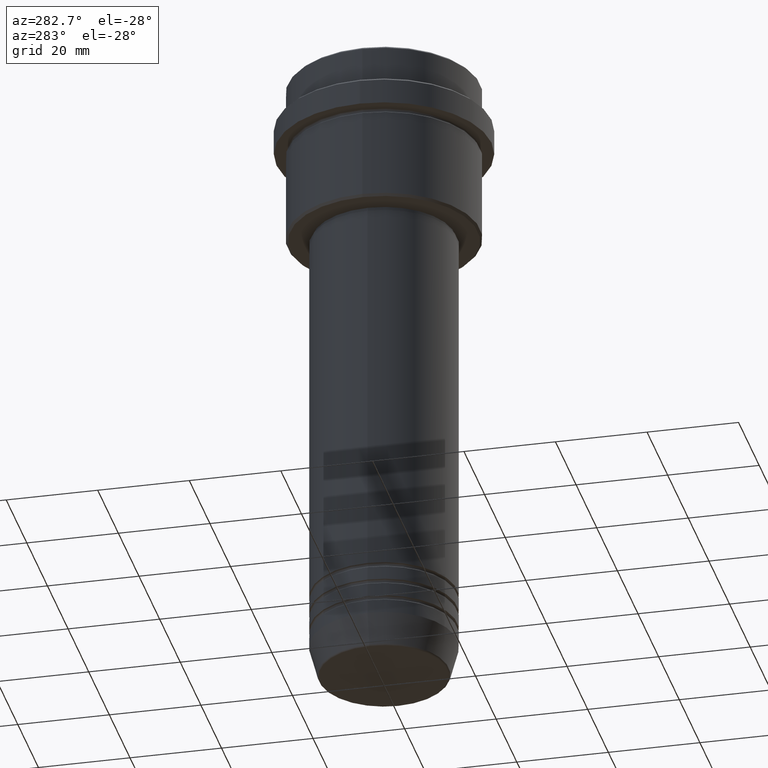
[diagram: clean part render]
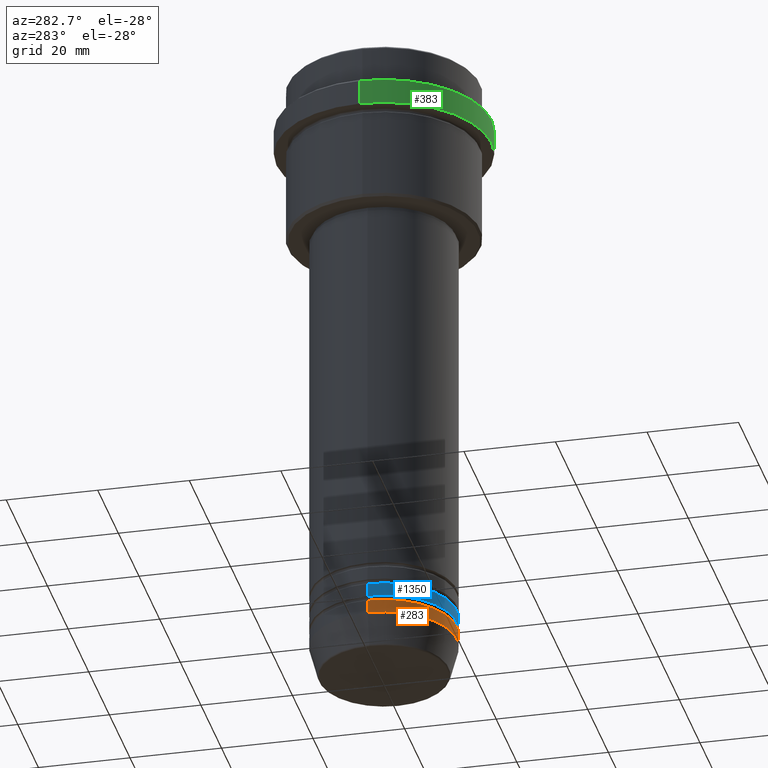
[diagram: same view with three faces highlighted in distinct colors, each labeled with its STEP entity id]
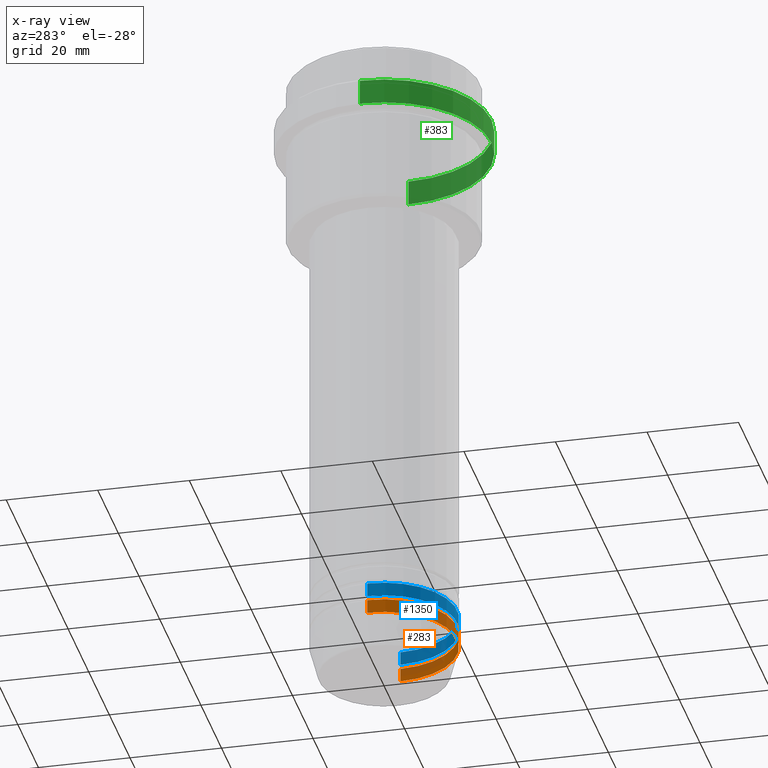
[diagram: x-ray of the same camera — body ghosted, the three highlighted faces saturated]
A machine part, auxiliary view with three faces highlighted in distinct colors.
The next image is the same camera in x-ray (body ghosted, the three faces saturated) — at least one of them is partly hidden behind the body in this view.
Their STEP definitions:

[orange] entity #283 — the highlighted cylindrical surface (partial cylindrical patch) has radius 16 mm, axis along (-0, -0, 1).
#3 = DIRECTION ( 'NONE',  ( -0.000000000000000000, -0.000000000000000000, 1.000000000000000000 ) ) ;
#29 = CARTESIAN_POINT ( 'NONE',  ( 16.00000000000000000, 0.000000000000000000, 0.000000000000000000 ) ) ;
#79 = LINE ( 'NONE', #947, #442 ) ;
#80 = CYLINDRICAL_SURFACE ( 'NONE', #251, 16.00000000000000000 ) ;
#144 = ORIENTED_EDGE ( 'NONE', *, *, #219, .T. ) ;
#150 = AXIS2_PLACEMENT_3D ( 'NONE', #367, #237, #1339 ) ;
#153 = VERTEX_POINT ( 'NONE', #823 ) ;
#219 = EDGE_CURVE ( 'NONE', #153, #1301, #718, .T. ) ;
#237 = DIRECTION ( 'NONE',  ( -0.000000000000000000, -0.000000000000000000, 1.000000000000000000 ) ) ;
#244 = EDGE_LOOP ( 'NONE', ( #806, #1318, #144, #672 ) ) ;
#248 = AXIS2_PLACEMENT_3D ( 'NONE', #430, #1290, #868 ) ;
#251 = AXIS2_PLACEMENT_3D ( 'NONE', #408, #1302, #994 ) ;
#283 = ADVANCED_FACE ( 'NONE', ( #1251 ), #80, .T. ) ;
#293 = EDGE_CURVE ( 'NONE', #859, #1301, #1065, .T. ) ;
#367 = CARTESIAN_POINT ( 'NONE',  ( 0.000000000000000000, 0.000000000000000000, -133.9999999999999716 ) ) ;
#377 = VERTEX_POINT ( 'NONE', #1008 ) ;
#408 = CARTESIAN_POINT ( 'NONE',  ( 0.000000000000000000, 0.000000000000000000, 0.000000000000000000 ) ) ;
#415 = VECTOR ( 'NONE', #577, 1000.000000000000000 ) ;
#430 = CARTESIAN_POINT ( 'NONE',  ( 0.000000000000000000, 0.000000000000000000, -130.9999999999999716 ) ) ;
#436 = EDGE_CURVE ( 'NONE', #377, #859, #79, .T. ) ;
#442 = VECTOR ( 'NONE', #3, 1000.000000000000000 ) ;
#462 = EDGE_CURVE ( 'NONE', #377, #153, #1193, .T. ) ;
#577 = DIRECTION ( 'NONE',  ( -0.000000000000000000, -0.000000000000000000, 1.000000000000000000 ) ) ;
#672 = ORIENTED_EDGE ( 'NONE', *, *, #293, .F. ) ;
#692 = CARTESIAN_POINT ( 'NONE',  ( 16.00000000000000000, 0.000000000000000000, -130.9999999999999716 ) ) ;
#718 = LINE ( 'NONE', #29, #415 ) ;
#806 = ORIENTED_EDGE ( 'NONE', *, *, #436, .F. ) ;
#823 = CARTESIAN_POINT ( 'NONE',  ( 16.00000000000000000, 0.000000000000000000, -133.9999999999999716 ) ) ;
#859 = VERTEX_POINT ( 'NONE', #911 ) ;
#868 = DIRECTION ( 'NONE',  ( 1.000000000000000000, 0.000000000000000000, 0.000000000000000000 ) ) ;
#911 = CARTESIAN_POINT ( 'NONE',  ( -16.00000000000000000, 1.959434878635765131E-15, -130.9999999999999716 ) ) ;
#947 = CARTESIAN_POINT ( 'NONE',  ( -16.00000000000000000, 1.959434878635765131E-15, 0.000000000000000000 ) ) ;
#994 = DIRECTION ( 'NONE',  ( 1.000000000000000000, 0.000000000000000000, 0.000000000000000000 ) ) ;
#1008 = CARTESIAN_POINT ( 'NONE',  ( -16.00000000000000000, 1.959434878635765131E-15, -133.9999999999999716 ) ) ;
#1065 = CIRCLE ( 'NONE', #248, 16.00000000000000000 ) ;
#1193 = CIRCLE ( 'NONE', #150, 16.00000000000000000 ) ;
#1251 = FACE_OUTER_BOUND ( 'NONE', #244, .T. ) ;
#1290 = DIRECTION ( 'NONE',  ( -0.000000000000000000, -0.000000000000000000, 1.000000000000000000 ) ) ;
#1301 = VERTEX_POINT ( 'NONE', #692 ) ;
#1302 = DIRECTION ( 'NONE',  ( -0.000000000000000000, -0.000000000000000000, 1.000000000000000000 ) ) ;
#1318 = ORIENTED_EDGE ( 'NONE', *, *, #462, .T. ) ;
#1339 = DIRECTION ( 'NONE',  ( 1.000000000000000000, 0.000000000000000000, 0.000000000000000000 ) ) ;

[blue] entity #1350 — the highlighted cylindrical surface (partial cylindrical patch) has radius 16 mm, axis along (-0, -0, 1).
#18 = DIRECTION ( 'NONE',  ( -0.000000000000000000, -0.000000000000000000, 1.000000000000000000 ) ) ;
#50 = ORIENTED_EDGE ( 'NONE', *, *, #1245, .F. ) ;
#51 = ORIENTED_EDGE ( 'NONE', *, *, #122, .T. ) ;
#122 = EDGE_CURVE ( 'NONE', #1153, #274, #380, .T. ) ;
#257 = CARTESIAN_POINT ( 'NONE',  ( 0.000000000000000000, 0.000000000000000000, 0.000000000000000000 ) ) ;
#274 = VERTEX_POINT ( 'NONE', #1376 ) ;
#340 = CARTESIAN_POINT ( 'NONE',  ( -16.00000000000000000, 1.959434878635765131E-15, 0.000000000000000000 ) ) ;
#379 = DIRECTION ( 'NONE',  ( 1.000000000000000000, 0.000000000000000000, 0.000000000000000000 ) ) ;
#380 = LINE ( 'NONE', #1252, #773 ) ;
#434 = CARTESIAN_POINT ( 'NONE',  ( 0.000000000000000000, 0.000000000000000000, -126.9999999999998579 ) ) ;
#526 = EDGE_LOOP ( 'NONE', ( #50, #1359, #51, #1079 ) ) ;
#556 = CIRCLE ( 'NONE', #1107, 16.00000000000000000 ) ;
#615 = VERTEX_POINT ( 'NONE', #1220 ) ;
#716 = DIRECTION ( 'NONE',  ( -0.000000000000000000, -0.000000000000000000, 1.000000000000000000 ) ) ;
#722 = DIRECTION ( 'NONE',  ( -0.000000000000000000, -0.000000000000000000, 1.000000000000000000 ) ) ;
#772 = AXIS2_PLACEMENT_3D ( 'NONE', #257, #716, #379 ) ;
#773 = VECTOR ( 'NONE', #18, 1000.000000000000000 ) ;
#779 = CARTESIAN_POINT ( 'NONE',  ( -16.00000000000000000, 1.959434878635765131E-15, -126.9999999999998579 ) ) ;
#780 = EDGE_CURVE ( 'NONE', #935, #274, #556, .T. ) ;
#832 = VECTOR ( 'NONE', #917, 1000.000000000000000 ) ;
#834 = CYLINDRICAL_SURFACE ( 'NONE', #772, 16.00000000000000000 ) ;
#835 = CARTESIAN_POINT ( 'NONE',  ( 0.000000000000000000, 0.000000000000000000, -129.9999999999998579 ) ) ;
#852 = CIRCLE ( 'NONE', #944, 16.00000000000000000 ) ;
#890 = DIRECTION ( 'NONE',  ( -0.000000000000000000, -0.000000000000000000, 1.000000000000000000 ) ) ;
#910 = LINE ( 'NONE', #340, #832 ) ;
#917 = DIRECTION ( 'NONE',  ( -0.000000000000000000, -0.000000000000000000, 1.000000000000000000 ) ) ;
#935 = VERTEX_POINT ( 'NONE', #779 ) ;
#944 = AXIS2_PLACEMENT_3D ( 'NONE', #835, #722, #1231 ) ;
#986 = CARTESIAN_POINT ( 'NONE',  ( 16.00000000000000000, 0.000000000000000000, -129.9999999999998579 ) ) ;
#1006 = EDGE_CURVE ( 'NONE', #615, #1153, #852, .T. ) ;
#1079 = ORIENTED_EDGE ( 'NONE', *, *, #780, .F. ) ;
#1107 = AXIS2_PLACEMENT_3D ( 'NONE', #434, #890, #1322 ) ;
#1153 = VERTEX_POINT ( 'NONE', #986 ) ;
#1220 = CARTESIAN_POINT ( 'NONE',  ( -16.00000000000000000, 1.959434878635765131E-15, -129.9999999999998579 ) ) ;
#1231 = DIRECTION ( 'NONE',  ( 1.000000000000000000, 0.000000000000000000, 0.000000000000000000 ) ) ;
#1240 = FACE_OUTER_BOUND ( 'NONE', #526, .T. ) ;
#1245 = EDGE_CURVE ( 'NONE', #615, #935, #910, .T. ) ;
#1252 = CARTESIAN_POINT ( 'NONE',  ( 16.00000000000000000, 0.000000000000000000, 0.000000000000000000 ) ) ;
#1322 = DIRECTION ( 'NONE',  ( 1.000000000000000000, 0.000000000000000000, 0.000000000000000000 ) ) ;
#1350 = ADVANCED_FACE ( 'NONE', ( #1240 ), #834, .T. ) ;
#1359 = ORIENTED_EDGE ( 'NONE', *, *, #1006, .T. ) ;
#1376 = CARTESIAN_POINT ( 'NONE',  ( 16.00000000000000000, 0.000000000000000000, -126.9999999999998579 ) ) ;

[green] entity #383 — the highlighted cylindrical surface (partial cylindrical patch) has radius 23.5 mm, axis along (-0, -0, 1).
#5 = CARTESIAN_POINT ( 'NONE',  ( -23.50000000000000000, 2.877919977996280320E-15, -9.499999999999985789 ) ) ;
#17 = CARTESIAN_POINT ( 'NONE',  ( 0.000000000000000000, 0.000000000000000000, -15.00000000000000000 ) ) ;
#27 = DIRECTION ( 'NONE',  ( 1.000000000000000000, 0.000000000000000000, 0.000000000000000000 ) ) ;
#33 = CARTESIAN_POINT ( 'NONE',  ( 0.000000000000000000, 0.000000000000000000, -9.499999999999985789 ) ) ;
#111 = DIRECTION ( 'NONE',  ( 1.000000000000000000, 0.000000000000000000, 0.000000000000000000 ) ) ;
#125 = DIRECTION ( 'NONE',  ( -0.000000000000000000, -0.000000000000000000, 1.000000000000000000 ) ) ;
#140 = DIRECTION ( 'NONE',  ( -0.000000000000000000, -0.000000000000000000, 1.000000000000000000 ) ) ;
#149 = EDGE_CURVE ( 'NONE', #1370, #1219, #1063, .T. ) ;
#151 = CARTESIAN_POINT ( 'NONE',  ( 23.50000000000000000, 0.000000000000000000, 0.000000000000000000 ) ) ;
#359 = EDGE_CURVE ( 'NONE', #1378, #1219, #1215, .T. ) ;
#371 = CIRCLE ( 'NONE', #1174, 23.50000000000000355 ) ;
#383 = ADVANCED_FACE ( 'NONE', ( #443 ), #680, .T. ) ;
#443 = FACE_OUTER_BOUND ( 'NONE', #473, .T. ) ;
#473 = EDGE_LOOP ( 'NONE', ( #695, #837, #967, #593 ) ) ;
#557 = CARTESIAN_POINT ( 'NONE',  ( 0.000000000000000000, 0.000000000000000000, 0.000000000000000000 ) ) ;
#593 = ORIENTED_EDGE ( 'NONE', *, *, #149, .T. ) ;
#631 = VECTOR ( 'NONE', #140, 1000.000000000000000 ) ;
#658 = VECTOR ( 'NONE', #125, 1000.000000000000000 ) ;
#670 = DIRECTION ( 'NONE',  ( 1.000000000000000000, 0.000000000000000000, 0.000000000000000000 ) ) ;
#680 = CYLINDRICAL_SURFACE ( 'NONE', #1106, 23.50000000000000000 ) ;
#695 = ORIENTED_EDGE ( 'NONE', *, *, #359, .F. ) ;
#699 = DIRECTION ( 'NONE',  ( 0.000000000000000000, 0.000000000000000000, -1.000000000000000000 ) ) ;
#774 = VERTEX_POINT ( 'NONE', #864 ) ;
#795 = DIRECTION ( 'NONE',  ( -0.000000000000000000, -0.000000000000000000, 1.000000000000000000 ) ) ;
#825 = DIRECTION ( 'NONE',  ( -0.000000000000000000, -0.000000000000000000, 1.000000000000000000 ) ) ;
#837 = ORIENTED_EDGE ( 'NONE', *, *, #1249, .T. ) ;
#847 = AXIS2_PLACEMENT_3D ( 'NONE', #33, #699, #27 ) ;
#864 = CARTESIAN_POINT ( 'NONE',  ( 23.50000000000000355, 0.000000000000000000, -15.00000000000000000 ) ) ;
#967 = ORIENTED_EDGE ( 'NONE', *, *, #1389, .T. ) ;
#1037 = CARTESIAN_POINT ( 'NONE',  ( 23.50000000000000000, 0.000000000000000000, -9.499999999999985789 ) ) ;
#1063 = CIRCLE ( 'NONE', #847, 23.50000000000000000 ) ;
#1106 = AXIS2_PLACEMENT_3D ( 'NONE', #557, #825, #670 ) ;
#1139 = CARTESIAN_POINT ( 'NONE',  ( -23.50000000000000711, 2.877919977996281109E-15, -15.00000000000000000 ) ) ;
#1174 = AXIS2_PLACEMENT_3D ( 'NONE', #17, #795, #111 ) ;
#1215 = LINE ( 'NONE', #1239, #631 ) ;
#1219 = VERTEX_POINT ( 'NONE', #5 ) ;
#1239 = CARTESIAN_POINT ( 'NONE',  ( -23.50000000000000000, 2.877919977996280320E-15, 0.000000000000000000 ) ) ;
#1249 = EDGE_CURVE ( 'NONE', #1378, #774, #371, .T. ) ;
#1257 = LINE ( 'NONE', #151, #658 ) ;
#1370 = VERTEX_POINT ( 'NONE', #1037 ) ;
#1378 = VERTEX_POINT ( 'NONE', #1139 ) ;
#1389 = EDGE_CURVE ( 'NONE', #774, #1370, #1257, .T. ) ;